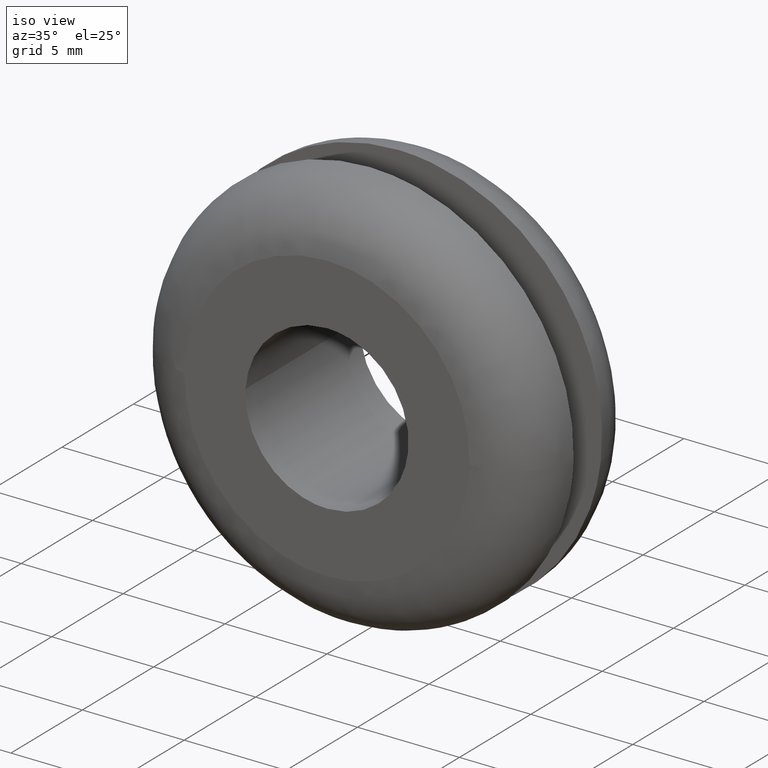
[diagram: clean part render]
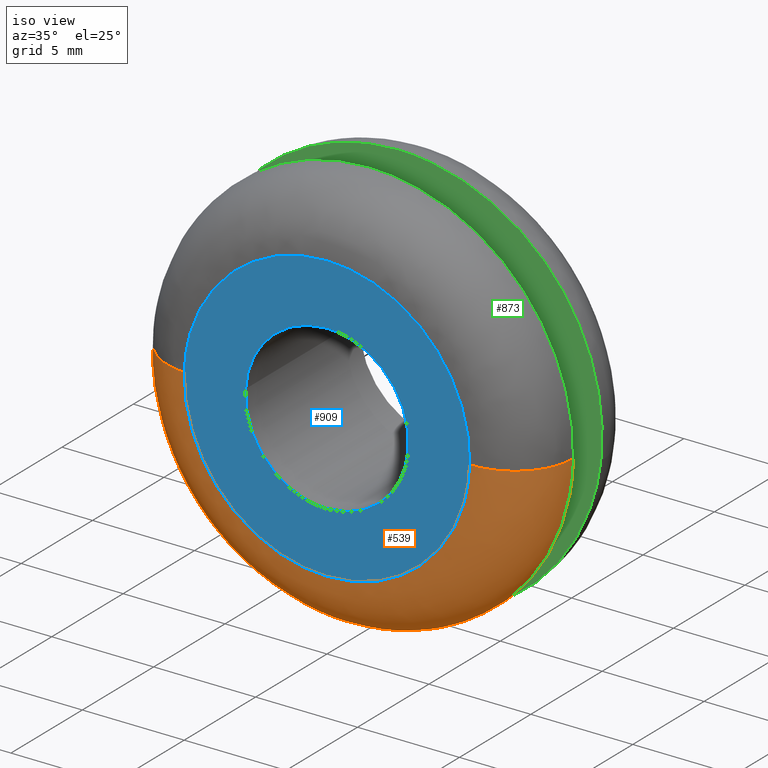
[diagram: same view with three faces highlighted in distinct colors, each labeled with its STEP entity id]
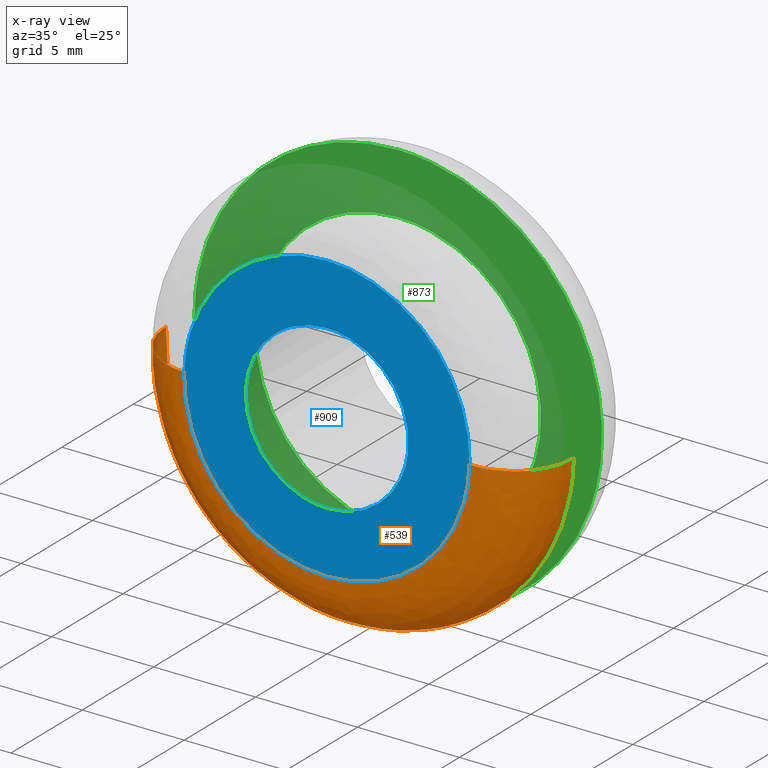
[diagram: x-ray of the same camera — body ghosted, the three highlighted faces saturated]
A machine part, iso view with three faces highlighted in distinct colors.
The next image is the same camera in x-ray (body ghosted, the three faces saturated) — at least one of them is partly hidden behind the body in this view.
Their STEP definitions:

[orange] entity #539 — the highlighted face is a freeform B-spline surface patch.
#420=CARTESIAN_POINT('',(-9.989543121437887,3.209172553633379,0.251117477667668));
#421=CARTESIAN_POINT('',(-10.240660599105558,3.209172553633380,-9.738425643770217));
#422=CARTESIAN_POINT('',(-0.251117477667671,3.209172553633379,-9.989543121437887));
#423=CARTESIAN_POINT('',(9.738425643770217,3.209172553633380,-10.240660599105560));
#424=CARTESIAN_POINT('',(9.989543121437887,3.209172553633379,-0.251117477667672));
#425=CARTESIAN_POINT('',(-10.229985953123554,-0.232007044478159,0.257161737818726));
#426=CARTESIAN_POINT('',(-10.487147690942281,-0.232007044478159,-9.972824215304826));
#427=CARTESIAN_POINT('',(-0.257161737818728,-0.232007044478159,-10.229985953123554));
#428=CARTESIAN_POINT('',(9.972824215304826,-0.232007044478159,-10.487147690942281));
#429=CARTESIAN_POINT('',(10.229985953123554,-0.232007044478159,-0.257161737818729));
#430=CARTESIAN_POINT('',(-6.789803307728222,0.007222948350152,0.170682308466864));
#431=CARTESIAN_POINT('',(-6.960485616195088,0.007222948350151,-6.619120999261356));
#432=CARTESIAN_POINT('',(-0.170682308466866,0.007222948350152,-6.789803307728222));
#433=CARTESIAN_POINT('',(6.619120999261356,0.007222948350151,-6.960485616195088));
#434=CARTESIAN_POINT('',(6.789803307728222,0.007222948350152,-0.170682308466866));
#442=(BOUNDED_SURFACE()B_SPLINE_SURFACE(2,2,((#420,#425,#430),(#421,#426,#431),(#422,#427,#432),(#423,#428,#433),(#424,#429,#434)),.UNSPECIFIED.,.F.,.F.,.U.)B_SPLINE_SURFACE_WITH_KNOTS((3,2,3),(3,3),(0.0,16.556445674216121,33.112891348432242),(0.0,5.467110975578632),.UNSPECIFIED.)GEOMETRIC_REPRESENTATION_ITEM()RATIONAL_B_SPLINE_SURFACE(((0.910892941386805,0.599412934105556,0.915966621324616),(0.644098575789570,0.423848950436964,0.647686209279166),(0.910892941386805,0.599412934105556,0.915966621324616),(0.644098575789570,0.423848950436964,0.647686209279166),(0.910892941386805,0.599412934105556,0.915966621324616)))REPRESENTATION_ITEM('')SURFACE());
#443=CARTESIAN_POINT('',(-9.996841892832897,2.999999999971457,0.251300954437361));
#444=VERTEX_POINT('',#443);
#445=CARTESIAN_POINT('',(0.0,3.0,-10.0));
#446=VERTEX_POINT('',#445);
#447=CARTESIAN_POINT('',(-9.996841892832897,2.999999999971457,0.251300954437361));
#448=CARTESIAN_POINT('',(-10.000000000000002,3.000000000000000,0.125670321237784));
#449=CARTESIAN_POINT('',(-10.0,3.0,-1.836910E-016));
#450=CARTESIAN_POINT('',(-10.000000000000002,3.0,-10.000000000000002));
#451=CARTESIAN_POINT('',(0.0,3.0,-10.0));
#459=(BOUNDED_CURVE()B_SPLINE_CURVE(2,(#447,#448,#449,#450,#451),.UNSPECIFIED.,.F.,.U.)B_SPLINE_CURVE_WITH_KNOTS((3,2,3),(0.745579891769668,0.750000000000000,1.0),.UNSPECIFIED.)CURVE()GEOMETRIC_REPRESENTATION_ITEM()RATIONAL_B_SPLINE_CURVE((0.989826157681261,0.994821521091657,1.0,0.707106781186548,1.0))REPRESENTATION_ITEM(''));
#460=EDGE_CURVE('',#444,#446,#459,.T.);
#461=ORIENTED_EDGE('',*,*,#460,.T.);
#462=CARTESIAN_POINT('',(9.996841892832897,2.999999999971457,-0.251300954437362));
#463=VERTEX_POINT('',#462);
#464=CARTESIAN_POINT('',(0.0,3.0,-10.0));
#465=CARTESIAN_POINT('',(9.751778761798706,3.000000000000000,-10.0));
#466=CARTESIAN_POINT('',(9.996841892832897,2.999999999971457,-0.251300954437362));
#474=(BOUNDED_CURVE()B_SPLINE_CURVE(2,(#464,#465,#466),.UNSPECIFIED.,.F.,.U.)B_SPLINE_CURVE_WITH_KNOTS((3,3),(0.0,0.245579891769668),.UNSPECIFIED.)CURVE()GEOMETRIC_REPRESENTATION_ITEM()RATIONAL_B_SPLINE_CURVE((1.0,0.712285260094891,0.989826157681261))REPRESENTATION_ITEM(''));
#475=EDGE_CURVE('',#446,#463,#474,.T.);
#476=ORIENTED_EDGE('',*,*,#475,.T.);
#477=CARTESIAN_POINT('',(6.997789325016047,-1.038440E-016,-0.175910668105941));
#478=VERTEX_POINT('',#477);
#479=CARTESIAN_POINT('',(9.996841892832897,2.999999999971456,-0.251300954437362));
#480=CARTESIAN_POINT('',(9.996841892775928,6.600574E-011,-0.251300954431939));
#481=CARTESIAN_POINT('',(6.997789325016048,-1.038440E-016,-0.175910668105941));
#489=(BOUNDED_CURVE()B_SPLINE_CURVE(2,(#479,#480,#481),.UNSPECIFIED.,.F.,.U.)B_SPLINE_CURVE_WITH_KNOTS((3,3),(-1.723441281965177,-0.263586878950601),.UNSPECIFIED.)CURVE()GEOMETRIC_REPRESENTATION_ITEM()RATIONAL_B_SPLINE_CURVE((0.883897567131759,0.626638727245067,0.888510409054381))REPRESENTATION_ITEM(''));
#490=EDGE_CURVE('',#463,#478,#489,.T.);
#491=ORIENTED_EDGE('',*,*,#490,.T.);
#492=CARTESIAN_POINT('',(0.0,-1.332268E-015,-7.0));
#493=VERTEX_POINT('',#492);
#494=CARTESIAN_POINT('',(0.0,-1.332268E-015,-7.0));
#495=CARTESIAN_POINT('',(6.826245133261127,-1.332268E-015,-7.0));
#496=CARTESIAN_POINT('',(6.997789325016048,-1.038440E-016,-0.175910668105941));
#504=(BOUNDED_CURVE()B_SPLINE_CURVE(2,(#494,#495,#496),.UNSPECIFIED.,.F.,.U.)B_SPLINE_CURVE_WITH_KNOTS((3,3),(0.0,0.245579891769720),.UNSPECIFIED.)CURVE()GEOMETRIC_REPRESENTATION_ITEM()RATIONAL_B_SPLINE_CURVE((1.0,0.712285260094830,0.989826157681378))REPRESENTATION_ITEM(''));
#505=EDGE_CURVE('',#493,#478,#504,.T.);
#506=ORIENTED_EDGE('',*,*,#505,.F.);
#507=CARTESIAN_POINT('',(-6.997789325016046,-1.038440E-016,0.175910668105943));
#508=VERTEX_POINT('',#507);
#509=CARTESIAN_POINT('',(-6.997789325016046,-1.038440E-016,0.175910668105943));
#510=CARTESIAN_POINT('',(-6.999999999999999,-1.332268E-015,0.087969224865409));
#511=CARTESIAN_POINT('',(-7.0,-1.332268E-015,-1.836910E-016));
#512=CARTESIAN_POINT('',(-6.999999999999999,-1.332268E-015,-6.999999999999999));
#513=CARTESIAN_POINT('',(0.0,-1.332268E-015,-7.0));
#521=(BOUNDED_CURVE()B_SPLINE_CURVE(2,(#509,#510,#511,#512,#513),.UNSPECIFIED.,.F.,.U.)B_SPLINE_CURVE_WITH_KNOTS((3,2,3),(0.745579891769720,0.750000000000000,1.0),.UNSPECIFIED.)CURVE()GEOMETRIC_REPRESENTATION_ITEM()RATIONAL_B_SPLINE_CURVE((0.989826157681378,0.994821521091718,1.0,0.707106781186547,1.0))REPRESENTATION_ITEM(''));
#522=EDGE_CURVE('',#508,#493,#521,.T.);
#523=ORIENTED_EDGE('',*,*,#522,.F.);
#524=CARTESIAN_POINT('',(-9.996841892832897,2.999999999971456,0.251300954437361));
#525=CARTESIAN_POINT('',(-9.996841892775928,6.600574E-011,0.251300954431940));
#526=CARTESIAN_POINT('',(-6.997789325016046,-1.038440E-016,0.175910668105943));
#534=(BOUNDED_CURVE()B_SPLINE_CURVE(2,(#524,#525,#526),.UNSPECIFIED.,.F.,.U.)B_SPLINE_CURVE_WITH_KNOTS((3,3),(-1.723441281965177,-0.263586878950601),.UNSPECIFIED.)CURVE()GEOMETRIC_REPRESENTATION_ITEM()RATIONAL_B_SPLINE_CURVE((0.883897567131759,0.626638727245067,0.888510409054381))REPRESENTATION_ITEM(''));
#535=EDGE_CURVE('',#444,#508,#534,.T.);
#536=ORIENTED_EDGE('',*,*,#535,.F.);
#537=EDGE_LOOP('',(#461,#476,#491,#506,#523,#536));
#538=FACE_OUTER_BOUND('',#537,.T.);
#539=ADVANCED_FACE('',(#538),#442,.T.);

[blue] entity #909 — the highlighted face is a freeform B-spline surface patch.
#271=CARTESIAN_POINT('',(3.972038926118297,-3.389876E-016,-0.472130034368349));
#272=VERTEX_POINT('',#271);
#278=CARTESIAN_POINT('',(0.0,-7.347638E-016,4.0));
#279=VERTEX_POINT('',#278);
#280=CARTESIAN_POINT('',(3.972038926118297,-3.389876E-016,-0.472130034368349));
#281=CARTESIAN_POINT('',(4.0,-7.347638E-016,-0.236892989983728));
#282=CARTESIAN_POINT('',(4.0,-7.347638E-016,-1.836910E-016));
#283=CARTESIAN_POINT('',(4.000000000000000,-7.347638E-016,4.000000000000000));
#284=CARTESIAN_POINT('',(0.0,-7.347638E-016,4.0));
#292=(BOUNDED_CURVE()B_SPLINE_CURVE(2,(#280,#281,#282,#283,#284),.UNSPECIFIED.,.F.,.U.)B_SPLINE_CURVE_WITH_KNOTS((3,2,3),(0.229562767279762,0.250000000000000,0.500000000000000),.UNSPECIFIED.)CURVE()GEOMETRIC_REPRESENTATION_ITEM()RATIONAL_B_SPLINE_CURVE((0.956027329978387,0.976056292499719,1.0,0.707106781186548,1.0))REPRESENTATION_ITEM(''));
#293=EDGE_CURVE('',#272,#279,#292,.T.);
#295=CARTESIAN_POINT('',(-3.992539270140139,-2.979930E-016,0.244192908142875));
#296=VERTEX_POINT('',#295);
#297=CARTESIAN_POINT('',(0.0,-7.347638E-016,4.0));
#298=CARTESIAN_POINT('',(-3.762825447901079,-7.347638E-016,4.000000000000001));
#299=CARTESIAN_POINT('',(-3.992539270140139,-2.979930E-016,0.244192908142875));
#307=(BOUNDED_CURVE()B_SPLINE_CURVE(2,(#297,#298,#299),.UNSPECIFIED.,.F.,.U.)B_SPLINE_CURVE_WITH_KNOTS((3,3),(0.500000000000000,0.739333016263455),.UNSPECIFIED.)CURVE()GEOMETRIC_REPRESENTATION_ITEM()RATIONAL_B_SPLINE_CURVE((1.0,0.719603929993058,0.976072157451558))REPRESENTATION_ITEM(''));
#308=EDGE_CURVE('',#279,#296,#307,.T.);
#386=CARTESIAN_POINT('',(0.0,-7.347638E-016,-4.0));
#387=VERTEX_POINT('',#386);
#388=CARTESIAN_POINT('',(-3.992539270140139,-2.979930E-016,0.244192908142875));
#389=CARTESIAN_POINT('',(-4.000000000000001,-7.347638E-016,0.122210426443659));
#390=CARTESIAN_POINT('',(-4.0,-7.347638E-016,-1.836910E-016));
#391=CARTESIAN_POINT('',(-4.000000000000000,-7.347638E-016,-4.000000000000000));
#392=CARTESIAN_POINT('',(0.0,-7.347638E-016,-4.0));
#400=(BOUNDED_CURVE()B_SPLINE_CURVE(2,(#388,#389,#390,#391,#392),.UNSPECIFIED.,.F.,.U.)B_SPLINE_CURVE_WITH_KNOTS((3,2,3),(0.739333016263455,0.750000000000000,1.0),.UNSPECIFIED.)CURVE()GEOMETRIC_REPRESENTATION_ITEM()RATIONAL_B_SPLINE_CURVE((0.976072157451558,0.987502851193490,1.0,0.707106781186548,1.0))REPRESENTATION_ITEM(''));
#401=EDGE_CURVE('',#296,#387,#400,.T.);
#403=CARTESIAN_POINT('',(0.0,-7.347638E-016,-4.0));
#404=CARTESIAN_POINT('',(3.552704322636881,-7.347638E-016,-4.000000000000001));
#405=CARTESIAN_POINT('',(3.972038926118297,-3.389876E-016,-0.472130034368349));
#413=(BOUNDED_CURVE()B_SPLINE_CURVE(2,(#403,#404,#405),.UNSPECIFIED.,.F.,.U.)B_SPLINE_CURVE_WITH_KNOTS((3,3),(0.0,0.229562767279762),.UNSPECIFIED.)CURVE()GEOMETRIC_REPRESENTATION_ITEM()RATIONAL_B_SPLINE_CURVE((1.0,0.731050488686828,0.956027329978387))REPRESENTATION_ITEM(''));
#414=EDGE_CURVE('',#387,#272,#413,.T.);
#477=CARTESIAN_POINT('',(6.997789325016047,-1.038440E-016,-0.175910668105941));
#478=VERTEX_POINT('',#477);
#492=CARTESIAN_POINT('',(0.0,-1.332268E-015,-7.0));
#493=VERTEX_POINT('',#492);
#494=CARTESIAN_POINT('',(0.0,-1.332268E-015,-7.0));
#495=CARTESIAN_POINT('',(6.826245133261127,-1.332268E-015,-7.0));
#496=CARTESIAN_POINT('',(6.997789325016048,-1.038440E-016,-0.175910668105941));
#504=(BOUNDED_CURVE()B_SPLINE_CURVE(2,(#494,#495,#496),.UNSPECIFIED.,.F.,.U.)B_SPLINE_CURVE_WITH_KNOTS((3,3),(0.0,0.245579891769720),.UNSPECIFIED.)CURVE()GEOMETRIC_REPRESENTATION_ITEM()RATIONAL_B_SPLINE_CURVE((1.0,0.712285260094830,0.989826157681378))REPRESENTATION_ITEM(''));
#505=EDGE_CURVE('',#493,#478,#504,.T.);
#507=CARTESIAN_POINT('',(-6.997789325016046,-1.038440E-016,0.175910668105943));
#508=VERTEX_POINT('',#507);
#509=CARTESIAN_POINT('',(-6.997789325016046,-1.038440E-016,0.175910668105943));
#510=CARTESIAN_POINT('',(-6.999999999999999,-1.332268E-015,0.087969224865409));
#511=CARTESIAN_POINT('',(-7.0,-1.332268E-015,-1.836910E-016));
#512=CARTESIAN_POINT('',(-6.999999999999999,-1.332268E-015,-6.999999999999999));
#513=CARTESIAN_POINT('',(0.0,-1.332268E-015,-7.0));
#521=(BOUNDED_CURVE()B_SPLINE_CURVE(2,(#509,#510,#511,#512,#513),.UNSPECIFIED.,.F.,.U.)B_SPLINE_CURVE_WITH_KNOTS((3,2,3),(0.745579891769720,0.750000000000000,1.0),.UNSPECIFIED.)CURVE()GEOMETRIC_REPRESENTATION_ITEM()RATIONAL_B_SPLINE_CURVE((0.989826157681378,0.994821521091718,1.0,0.707106781186547,1.0))REPRESENTATION_ITEM(''));
#522=EDGE_CURVE('',#508,#493,#521,.T.);
#579=CARTESIAN_POINT('',(0.0,-1.332268E-015,7.0));
#580=VERTEX_POINT('',#579);
#581=CARTESIAN_POINT('',(0.0,-1.332268E-015,7.0));
#582=CARTESIAN_POINT('',(-6.826245133261146,-1.332268E-015,6.999999999999999));
#583=CARTESIAN_POINT('',(-6.997789325016046,-1.038440E-016,0.175910668105943));
#591=(BOUNDED_CURVE()B_SPLINE_CURVE(2,(#581,#582,#583),.UNSPECIFIED.,.F.,.U.)B_SPLINE_CURVE_WITH_KNOTS((3,3),(0.500000000000000,0.745579891769721),.UNSPECIFIED.)CURVE()GEOMETRIC_REPRESENTATION_ITEM()RATIONAL_B_SPLINE_CURVE((1.0,0.712285260094829,0.989826157681379))REPRESENTATION_ITEM(''));
#592=EDGE_CURVE('',#580,#508,#591,.T.);
#594=CARTESIAN_POINT('',(6.997789325016047,-1.038440E-016,-0.175910668105941));
#595=CARTESIAN_POINT('',(6.999999999999999,-1.332268E-015,-0.087969224865407));
#596=CARTESIAN_POINT('',(7.0,-1.332268E-015,-1.836910E-016));
#597=CARTESIAN_POINT('',(6.999999999999999,-1.332268E-015,6.999999999999999));
#598=CARTESIAN_POINT('',(0.0,-1.332268E-015,7.0));
#606=(BOUNDED_CURVE()B_SPLINE_CURVE(2,(#594,#595,#596,#597,#598),.UNSPECIFIED.,.F.,.U.)B_SPLINE_CURVE_WITH_KNOTS((3,2,3),(0.245579891769720,0.250000000000000,0.500000000000000),.UNSPECIFIED.)CURVE()GEOMETRIC_REPRESENTATION_ITEM()RATIONAL_B_SPLINE_CURVE((0.989826157681378,0.994821521091718,1.0,0.707106781186547,1.0))REPRESENTATION_ITEM(''));
#607=EDGE_CURVE('',#478,#580,#606,.T.);
#892=CARTESIAN_POINT('',(-7.696868582839481,-1.033516E-015,-7.699299972865284));
#893=CARTESIAN_POINT('',(-7.696868582839481,-1.033516E-015,7.699300348374545));
#894=CARTESIAN_POINT('',(7.696868833099930,-1.033516E-015,-7.699299972865284));
#895=CARTESIAN_POINT('',(7.696868833099930,-1.033516E-015,7.699300348374544));
#896=B_SPLINE_SURFACE_WITH_KNOTS('',1,1,((#892,#894),(#893,#895)),.UNSPECIFIED.,.F.,.F.,.U.,(2,2),(2,2),(0.0,15.398600321239829),(0.0,15.393737415939411),.UNSPECIFIED.);
#897=ORIENTED_EDGE('',*,*,#505,.T.);
#898=ORIENTED_EDGE('',*,*,#607,.T.);
#899=ORIENTED_EDGE('',*,*,#592,.T.);
#900=ORIENTED_EDGE('',*,*,#522,.T.);
#901=EDGE_LOOP('',(#897,#898,#899,#900));
#902=FACE_OUTER_BOUND('',#901,.T.);
#903=ORIENTED_EDGE('',*,*,#308,.F.);
#904=ORIENTED_EDGE('',*,*,#293,.F.);
#905=ORIENTED_EDGE('',*,*,#414,.F.);
#906=ORIENTED_EDGE('',*,*,#401,.F.);
#907=EDGE_LOOP('',(#903,#904,#905,#906));
#908=FACE_BOUND('',#907,.T.);
#909=ADVANCED_FACE('',(#902,#908),#896,.F.);

[green] entity #873 — the highlighted face is a freeform B-spline surface patch.
#85=CARTESIAN_POINT('',(6.951067160060351,5.0,-0.826235642122928));
#86=VERTEX_POINT('',#85);
#92=CARTESIAN_POINT('',(0.0,5.0,7.0));
#93=VERTEX_POINT('',#92);
#94=CARTESIAN_POINT('',(6.951067160060351,5.000000000000001,-0.826235642122928));
#95=CARTESIAN_POINT('',(6.999999999999999,5.0,-0.414566816180102));
#96=CARTESIAN_POINT('',(7.0,5.0,-1.836910E-016));
#97=CARTESIAN_POINT('',(6.999999999999999,4.999999999999999,6.999999999999999));
#98=CARTESIAN_POINT('',(0.0,5.0,7.0));
#106=(BOUNDED_CURVE()B_SPLINE_CURVE(2,(#94,#95,#96,#97,#98),.UNSPECIFIED.,.F.,.U.)B_SPLINE_CURVE_WITH_KNOTS((3,2,3),(0.229562570780312,0.250000000000000,0.500000000000000),.UNSPECIFIED.)CURVE()GEOMETRIC_REPRESENTATION_ITEM()RATIONAL_B_SPLINE_CURVE((0.956026944830704,0.976056062286294,1.0,0.707106781186547,1.0))REPRESENTATION_ITEM(''));
#107=EDGE_CURVE('',#86,#93,#106,.T.);
#109=CARTESIAN_POINT('',(-6.986943966739478,5.0,0.427333599901195));
#110=VERTEX_POINT('',#109);
#111=CARTESIAN_POINT('',(0.0,5.0,7.0));
#112=CARTESIAN_POINT('',(-6.584948300672126,5.000000000000001,6.999999999999999));
#113=CARTESIAN_POINT('',(-6.986943966739478,5.0,0.427333599901195));
#121=(BOUNDED_CURVE()B_SPLINE_CURVE(2,(#111,#112,#113),.UNSPECIFIED.,.F.,.U.)B_SPLINE_CURVE_WITH_KNOTS((3,3),(0.500000000000000,0.739333114782848),.UNSPECIFIED.)CURVE()GEOMETRIC_REPRESENTATION_ITEM()RATIONAL_B_SPLINE_CURVE((1.0,0.719603814570409,0.976072368597561))REPRESENTATION_ITEM(''));
#122=EDGE_CURVE('',#93,#110,#121,.T.);
#196=CARTESIAN_POINT('',(0.0,5.0,-7.0));
#197=VERTEX_POINT('',#196);
#198=CARTESIAN_POINT('',(-6.986943966739478,5.0,0.427333599901195));
#199=CARTESIAN_POINT('',(-7.000000000000001,5.0,0.213866246009296));
#200=CARTESIAN_POINT('',(-7.0,5.0,-1.836910E-016));
#201=CARTESIAN_POINT('',(-6.999999999999999,4.999999999999999,-6.999999999999999));
#202=CARTESIAN_POINT('',(0.0,5.0,-7.0));
#210=(BOUNDED_CURVE()B_SPLINE_CURVE(2,(#198,#199,#200,#201,#202),.UNSPECIFIED.,.F.,.U.)B_SPLINE_CURVE_WITH_KNOTS((3,2,3),(0.739333114782848,0.750000000000000,1.0),.UNSPECIFIED.)CURVE()GEOMETRIC_REPRESENTATION_ITEM()RATIONAL_B_SPLINE_CURVE((0.976072368597561,0.987502966616138,1.0,0.707106781186547,1.0))REPRESENTATION_ITEM(''));
#211=EDGE_CURVE('',#110,#197,#210,.T.);
#213=CARTESIAN_POINT('',(0.0,5.0,-7.0));
#214=CARTESIAN_POINT('',(6.217225284981444,5.0,-6.999999999999999));
#215=CARTESIAN_POINT('',(6.951067160060351,5.000000000000001,-0.826235642122928));
#223=(BOUNDED_CURVE()B_SPLINE_CURVE(2,(#213,#214,#215),.UNSPECIFIED.,.F.,.U.)B_SPLINE_CURVE_WITH_KNOTS((3,3),(0.0,0.229562570780312),.UNSPECIFIED.)CURVE()GEOMETRIC_REPRESENTATION_ITEM()RATIONAL_B_SPLINE_CURVE((1.0,0.731050718900253,0.956026944830704))REPRESENTATION_ITEM(''));
#224=EDGE_CURVE('',#197,#86,#223,.T.);
#657=CARTESIAN_POINT('',(9.933117099610479,4.999997884923427,-1.154636170123739));
#658=VERTEX_POINT('',#657);
#659=CARTESIAN_POINT('',(0.0,5.0,10.0));
#660=VERTEX_POINT('',#659);
#661=CARTESIAN_POINT('',(9.933117099610479,4.999997884923427,-1.154636170123739));
#662=CARTESIAN_POINT('',(9.999999999996716,4.999997939473606,-0.579255198448484));
#663=CARTESIAN_POINT('',(9.999999999996813,4.999998000732061,3.706863E-013));
#664=CARTESIAN_POINT('',(9.999999999998499,4.999999058270348,10.000000000000174));
#665=CARTESIAN_POINT('',(0.0,5.0,10.0));
#673=(BOUNDED_CURVE()B_SPLINE_CURVE(2,(#661,#662,#663,#664,#665),.UNSPECIFIED.,.F.,.U.)B_SPLINE_CURVE_WITH_KNOTS((3,2,3),(0.230000104273615,0.250000000000000,0.500000000000000),.UNSPECIFIED.)CURVE()GEOMETRIC_REPRESENTATION_ITEM()RATIONAL_B_SPLINE_CURVE((0.956886323426515,0.976568664659063,1.0,0.707106781186548,1.0))REPRESENTATION_ITEM(''));
#674=EDGE_CURVE('',#658,#660,#673,.T.);
#723=CARTESIAN_POINT('',(-9.999999999998607,4.999997956926952,0.000000013155249));
#724=VERTEX_POINT('',#723);
#738=CARTESIAN_POINT('',(0.0,5.0,10.0));
#739=CARTESIAN_POINT('',(-9.999999986844051,4.999998978463476,9.999999999999998));
#740=CARTESIAN_POINT('',(-9.999999999998607,4.999997956926952,0.000000013155249));
#748=(BOUNDED_CURVE()B_SPLINE_CURVE(2,(#738,#739,#740),.UNSPECIFIED.,.F.,.U.)B_SPLINE_CURVE_WITH_KNOTS((3,3),(0.500000000000000,0.749999999767446),.UNSPECIFIED.)CURVE()GEOMETRIC_REPRESENTATION_ITEM()RATIONAL_B_SPLINE_CURVE((1.0,0.707106781459002,0.999999999455092))REPRESENTATION_ITEM(''));
#749=EDGE_CURVE('',#660,#724,#748,.T.);
#777=CARTESIAN_POINT('',(0.0,5.0,-10.0));
#778=VERTEX_POINT('',#777);
#779=CARTESIAN_POINT('',(0.0,5.0,-10.0));
#780=CARTESIAN_POINT('',(8.904922534556707,4.999998942461713,-9.999999999999803));
#781=CARTESIAN_POINT('',(9.933117099610479,4.999997884923427,-1.154636170123739));
#789=(BOUNDED_CURVE()B_SPLINE_CURVE(2,(#779,#780,#781),.UNSPECIFIED.,.F.,.U.)B_SPLINE_CURVE_WITH_KNOTS((3,3),(0.0,0.230000104273615),.UNSPECIFIED.)CURVE()GEOMETRIC_REPRESENTATION_ITEM()RATIONAL_B_SPLINE_CURVE((1.0,0.730538116527485,0.956886323426515))REPRESENTATION_ITEM(''));
#790=EDGE_CURVE('',#778,#658,#789,.T.);
#792=CARTESIAN_POINT('',(-9.999999999998600,4.999997956926949,0.000000013155249));
#793=CARTESIAN_POINT('',(-10.000000013154557,4.999998978463476,-10.000000000000002));
#794=CARTESIAN_POINT('',(0.0,5.0,-10.0));
#802=(BOUNDED_CURVE()B_SPLINE_CURVE(2,(#792,#793,#794),.UNSPECIFIED.,.F.,.U.)B_SPLINE_CURVE_WITH_KNOTS((3,3),(0.749999999767446,1.0),.UNSPECIFIED.)CURVE()GEOMETRIC_REPRESENTATION_ITEM()RATIONAL_B_SPLINE_CURVE((1.000000000544909,0.707106780914093,1.0))REPRESENTATION_ITEM(''));
#803=EDGE_CURVE('',#724,#778,#802,.T.);
#856=CARTESIAN_POINT('',(-10.998997202637330,5.0,-10.998999961236120));
#857=CARTESIAN_POINT('',(-10.998997202637330,5.0,10.999000497677921));
#858=CARTESIAN_POINT('',(10.998942511583390,5.0,-10.998999961236120));
#859=CARTESIAN_POINT('',(10.998942511583390,5.0,10.999000497677921));
#860=B_SPLINE_SURFACE_WITH_KNOTS('',1,1,((#856,#858),(#857,#859)),.UNSPECIFIED.,.F.,.F.,.U.,(2,2),(2,2),(0.0,21.998000458914039),(0.0,21.997939714220720),.UNSPECIFIED.);
#861=ORIENTED_EDGE('',*,*,#790,.T.);
#862=ORIENTED_EDGE('',*,*,#674,.T.);
#863=ORIENTED_EDGE('',*,*,#749,.T.);
#864=ORIENTED_EDGE('',*,*,#803,.T.);
#865=EDGE_LOOP('',(#861,#862,#863,#864));
#866=FACE_OUTER_BOUND('',#865,.T.);
#867=ORIENTED_EDGE('',*,*,#122,.F.);
#868=ORIENTED_EDGE('',*,*,#107,.F.);
#869=ORIENTED_EDGE('',*,*,#224,.F.);
#870=ORIENTED_EDGE('',*,*,#211,.F.);
#871=EDGE_LOOP('',(#867,#868,#869,#870));
#872=FACE_BOUND('',#871,.T.);
#873=ADVANCED_FACE('',(#866,#872),#860,.F.);